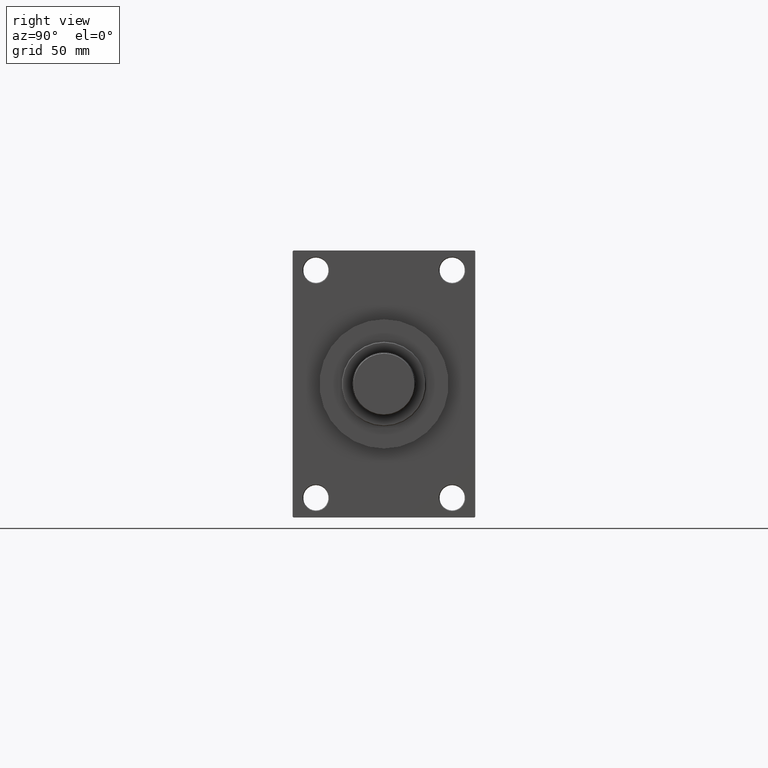
[diagram: clean part render]
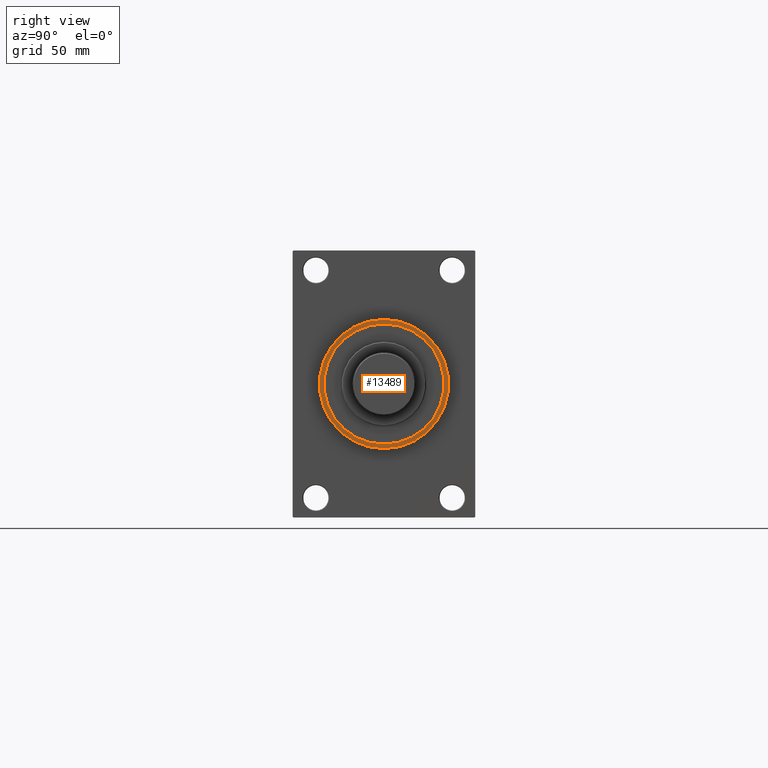
[diagram: same view with one face highlighted and labeled with its STEP entity id]
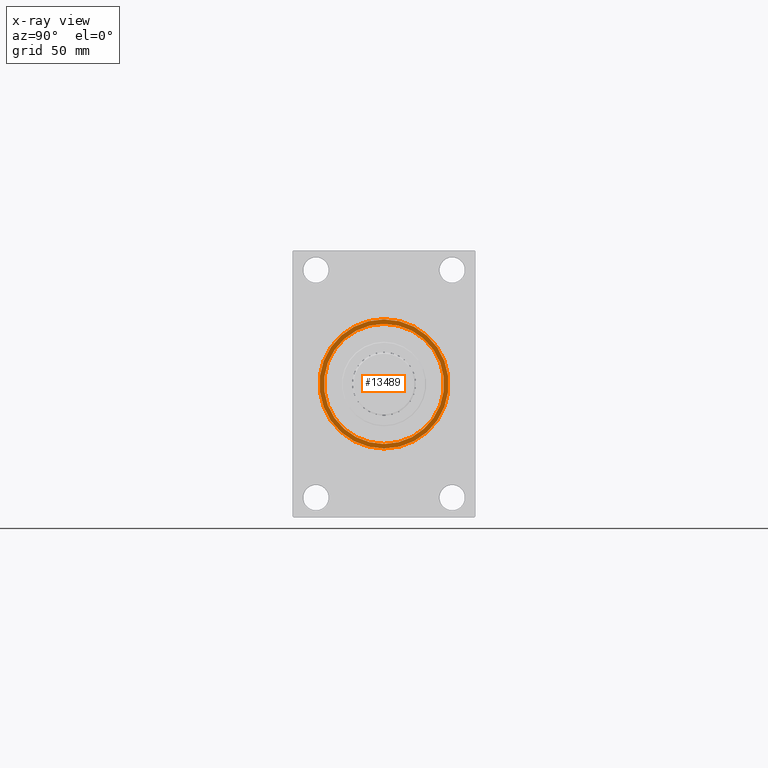
[diagram: x-ray of the same camera — body ghosted, the highlighted face saturated]
A machine part, right view. The second image highlights one B-rep face of the part: STEP entity #13489.
The next image is the same camera in x-ray: the body ghosted, the highlighted face saturated — about 0% of this face is hidden behind the body in this view.
In plain terms, the highlighted planar face has unit normal (1, 0, 0).
Its self-contained STEP definition (entity closure, byte-faithful):
#44 = CARTESIAN_POINT ( 'NONE',  ( 368.0000000000000000, 5.235365066354935472E-15, 42.75000000000000000 ) ) ;
#897 = DIRECTION ( 'NONE',  ( 1.000000000000000000, 0.000000000000000000, 0.000000000000000000 ) ) ;
#1239 = FACE_BOUND ( 'NONE', #42613, .T. ) ;
#4244 = EDGE_CURVE ( 'NONE', #39265, #8291, #15454, .T. ) ;
#6201 = CARTESIAN_POINT ( 'NONE',  ( 368.0000000000000000, 0.000000000000000000, 46.00000000000000000 ) ) ;
#6939 = CARTESIAN_POINT ( 'NONE',  ( 368.0000000000000000, 0.000000000000000000, 0.000000000000000000 ) ) ;
#8291 = VERTEX_POINT ( 'NONE', #20484 ) ;
#11138 = EDGE_LOOP ( 'NONE', ( #29139, #41032 ) ) ;
#12057 = ORIENTED_EDGE ( 'NONE', *, *, #17338, .F. ) ;
#13489 = ADVANCED_FACE ( 'NONE', ( #1239, #25416 ), #14957, .T. ) ;
#14561 = CARTESIAN_POINT ( 'NONE',  ( 368.0000000000000000, 0.000000000000000000, 0.000000000000000000 ) ) ;
#14714 = DIRECTION ( 'NONE',  ( 1.000000000000000000, 0.000000000000000000, 0.000000000000000000 ) ) ;
#14716 = DIRECTION ( 'NONE',  ( 0.000000000000000000, 0.000000000000000000, -1.000000000000000000 ) ) ;
#14723 = VERTEX_POINT ( 'NONE', #31941 ) ;
#14957 = PLANE ( 'NONE',  #28195 ) ;
#15454 = CIRCLE ( 'NONE', #42640, 46.00000000000000000 ) ;
#17338 = EDGE_CURVE ( 'NONE', #47987, #14723, #29805, .T. ) ;
#17675 = ORIENTED_EDGE ( 'NONE', *, *, #19289, .F. ) ;
#18127 = CARTESIAN_POINT ( 'NONE',  ( 368.0000000000000000, 0.000000000000000000, 0.000000000000000000 ) ) ;
#18922 = AXIS2_PLACEMENT_3D ( 'NONE', #34229, #897, #34475 ) ;
#19289 = EDGE_CURVE ( 'NONE', #14723, #47987, #43076, .T. ) ;
#20424 = CIRCLE ( 'NONE', #27406, 46.00000000000000000 ) ;
#20484 = CARTESIAN_POINT ( 'NONE',  ( 368.0000000000000000, 5.633375276077824704E-15, -46.00000000000000000 ) ) ;
#25416 = FACE_OUTER_BOUND ( 'NONE', #11138, .T. ) ;
#27406 = AXIS2_PLACEMENT_3D ( 'NONE', #18127, #28840, #14716 ) ;
#28195 = AXIS2_PLACEMENT_3D ( 'NONE', #6939, #14714, #34569 ) ;
#28840 = DIRECTION ( 'NONE',  ( 1.000000000000000000, 0.000000000000000000, 0.000000000000000000 ) ) ;
#29139 = ORIENTED_EDGE ( 'NONE', *, *, #4244, .T. ) ;
#29805 = CIRCLE ( 'NONE', #18922, 42.75000000000000000 ) ;
#31941 = CARTESIAN_POINT ( 'NONE',  ( 368.0000000000000000, 0.000000000000000000, -42.75000000000000000 ) ) ;
#34006 = DIRECTION ( 'NONE',  ( 0.000000000000000000, 0.000000000000000000, -1.000000000000000000 ) ) ;
#34229 = CARTESIAN_POINT ( 'NONE',  ( 368.0000000000000000, 0.000000000000000000, 0.000000000000000000 ) ) ;
#34475 = DIRECTION ( 'NONE',  ( 0.000000000000000000, 0.000000000000000000, -1.000000000000000000 ) ) ;
#34569 = DIRECTION ( 'NONE',  ( 0.000000000000000000, 0.000000000000000000, -1.000000000000000000 ) ) ;
#35380 = DIRECTION ( 'NONE',  ( 1.000000000000000000, 0.000000000000000000, 0.000000000000000000 ) ) ;
#39265 = VERTEX_POINT ( 'NONE', #6201 ) ;
#39531 = DIRECTION ( 'NONE',  ( 0.000000000000000000, 0.000000000000000000, -1.000000000000000000 ) ) ;
#40263 = EDGE_CURVE ( 'NONE', #8291, #39265, #20424, .T. ) ;
#41032 = ORIENTED_EDGE ( 'NONE', *, *, #40263, .T. ) ;
#41085 = DIRECTION ( 'NONE',  ( 1.000000000000000000, 0.000000000000000000, 0.000000000000000000 ) ) ;
#42613 = EDGE_LOOP ( 'NONE', ( #17675, #12057 ) ) ;
#42640 = AXIS2_PLACEMENT_3D ( 'NONE', #14561, #41085, #34006 ) ;
#43076 = CIRCLE ( 'NONE', #44645, 42.75000000000000000 ) ;
#43181 = CARTESIAN_POINT ( 'NONE',  ( 368.0000000000000000, 0.000000000000000000, 0.000000000000000000 ) ) ;
#44645 = AXIS2_PLACEMENT_3D ( 'NONE', #43181, #35380, #39531 ) ;
#47987 = VERTEX_POINT ( 'NONE', #44 ) ;